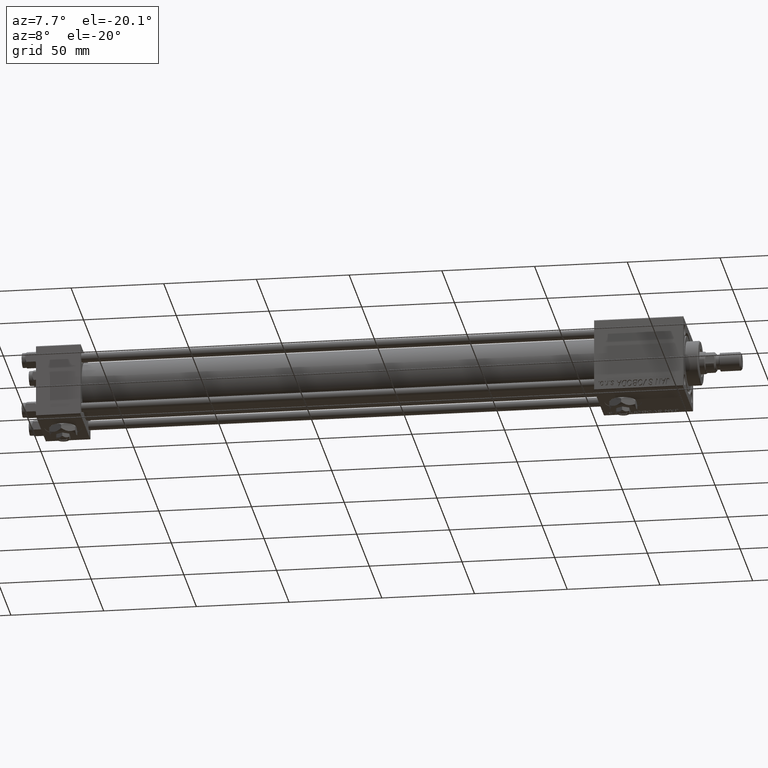
[diagram: clean part render]
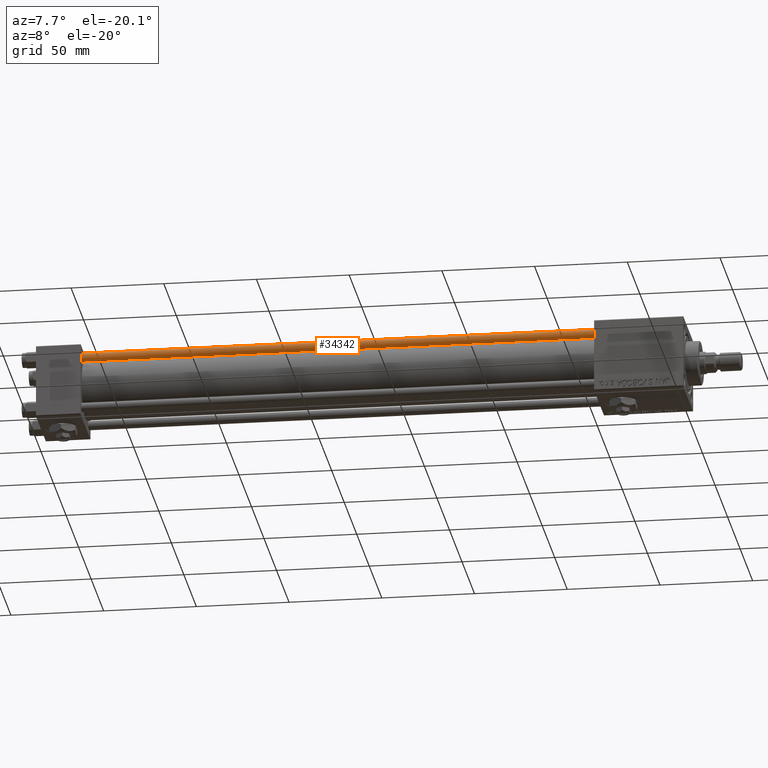
[diagram: same view with one face highlighted and labeled with its STEP entity id]
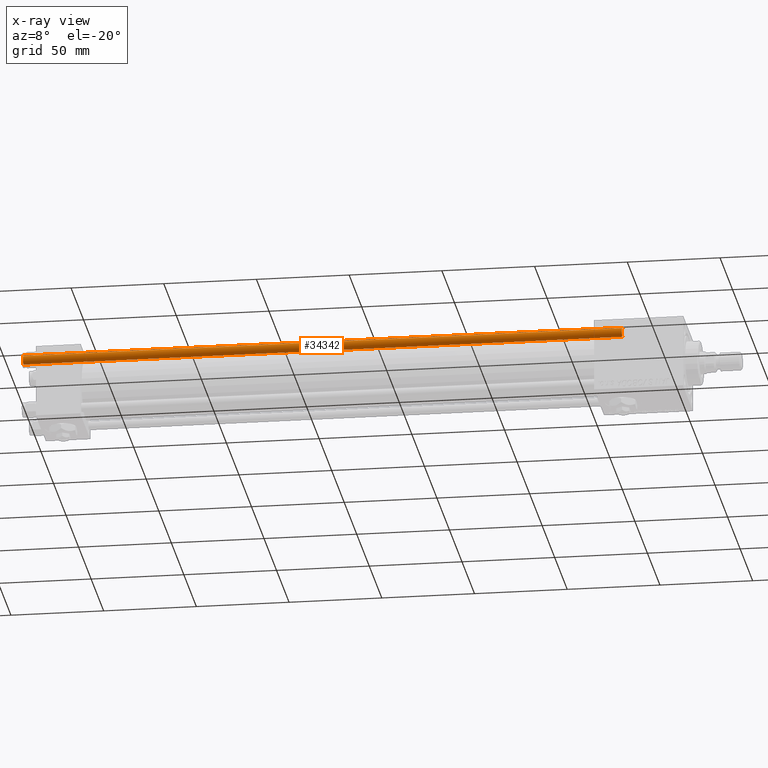
[diagram: x-ray of the same camera — body ghosted, the highlighted face saturated]
A machine part, auxiliary view. The second image highlights one B-rep face of the part: STEP entity #34342.
The next image is the same camera in x-ray: the body ghosted, the highlighted face saturated — about 0% of this face is hidden behind the body in this view.
In plain terms, the highlighted cylindrical surface (edge-blend (fillet) strip) has radius 2.5 mm, axis along (1, 0, -0).
Its self-contained STEP definition (entity closure, byte-faithful):
#499 = CARTESIAN_POINT ( 'NONE',  ( -2.500000000000000000, 0.000000000000000000, 323.5000000000000568 ) ) ;
#1135 = ORIENTED_EDGE ( 'NONE', *, *, #27463, .T. ) ;
#1357 = DIRECTION ( 'NONE',  ( 1.000000000000000000, 0.000000000000000000, 0.000000000000000000 ) ) ;
#2601 = AXIS2_PLACEMENT_3D ( 'NONE', #27250, #38956, #6001 ) ;
#3760 = FACE_OUTER_BOUND ( 'NONE', #43007, .T. ) ;
#6001 = DIRECTION ( 'NONE',  ( 1.000000000000000000, 0.000000000000000000, 0.000000000000000000 ) ) ;
#6248 = DIRECTION ( 'NONE',  ( -1.000000000000000000, 0.000000000000000000, 0.000000000000000000 ) ) ;
#8138 = ORIENTED_EDGE ( 'NONE', *, *, #23623, .T. ) ;
#10996 = LINE ( 'NONE', #19477, #38015 ) ;
#11082 = VERTEX_POINT ( 'NONE', #34939 ) ;
#11533 = DIRECTION ( 'NONE',  ( -0.000000000000000000, -0.000000000000000000, -1.000000000000000000 ) ) ;
#13190 = CIRCLE ( 'NONE', #48881, 2.500000000000000000 ) ;
#13857 = DIRECTION ( 'NONE',  ( 0.000000000000000000, 0.000000000000000000, -1.000000000000000000 ) ) ;
#17365 = EDGE_CURVE ( 'NONE', #40704, #11082, #13190, .T. ) ;
#19477 = CARTESIAN_POINT ( 'NONE',  ( 2.500000000000000000, 3.061616997868383141E-16, 324.0000000000000000 ) ) ;
#23623 = EDGE_CURVE ( 'NONE', #11082, #36876, #10996, .T. ) ;
#25529 = CIRCLE ( 'NONE', #2601, 2.500000000000000000 ) ;
#27250 = CARTESIAN_POINT ( 'NONE',  ( 0.000000000000000000, 0.000000000000000000, 0.4999999999998894218 ) ) ;
#27463 = EDGE_CURVE ( 'NONE', #36876, #28913, #25529, .T. ) ;
#27941 = ORIENTED_EDGE ( 'NONE', *, *, #46781, .F. ) ;
#28913 = VERTEX_POINT ( 'NONE', #34591 ) ;
#30761 = AXIS2_PLACEMENT_3D ( 'NONE', #43929, #48194, #6248 ) ;
#31692 = CYLINDRICAL_SURFACE ( 'NONE', #30761, 2.500000000000000000 ) ;
#32977 = ORIENTED_EDGE ( 'NONE', *, *, #17365, .T. ) ;
#34342 = ADVANCED_FACE ( 'NONE', ( #3760 ), #31692, .T. ) ;
#34591 = CARTESIAN_POINT ( 'NONE',  ( -2.500000000000000000, 0.000000000000000000, 0.4999999999998894218 ) ) ;
#34939 = CARTESIAN_POINT ( 'NONE',  ( 2.500000000000000000, 3.061616997868383141E-16, 323.5000000000000568 ) ) ;
#36876 = VERTEX_POINT ( 'NONE', #43227 ) ;
#38015 = VECTOR ( 'NONE', #11533, 1000.000000000000000 ) ;
#38956 = DIRECTION ( 'NONE',  ( -0.000000000000000000, -0.000000000000000000, 1.000000000000000000 ) ) ;
#40344 = DIRECTION ( 'NONE',  ( -0.000000000000000000, -0.000000000000000000, -1.000000000000000000 ) ) ;
#40704 = VERTEX_POINT ( 'NONE', #499 ) ;
#41388 = LINE ( 'NONE', #52595, #48968 ) ;
#43007 = EDGE_LOOP ( 'NONE', ( #32977, #8138, #1135, #27941 ) ) ;
#43227 = CARTESIAN_POINT ( 'NONE',  ( 2.500000000000000000, 3.061616997868383141E-16, 0.4999999999998894218 ) ) ;
#43929 = CARTESIAN_POINT ( 'NONE',  ( 0.000000000000000000, 0.000000000000000000, 324.0000000000000000 ) ) ;
#46781 = EDGE_CURVE ( 'NONE', #40704, #28913, #41388, .T. ) ;
#48194 = DIRECTION ( 'NONE',  ( -0.000000000000000000, -0.000000000000000000, -1.000000000000000000 ) ) ;
#48881 = AXIS2_PLACEMENT_3D ( 'NONE', #50561, #13857, #1357 ) ;
#48968 = VECTOR ( 'NONE', #40344, 1000.000000000000000 ) ;
#50561 = CARTESIAN_POINT ( 'NONE',  ( 0.000000000000000000, 0.000000000000000000, 323.5000000000000568 ) ) ;
#52595 = CARTESIAN_POINT ( 'NONE',  ( -2.500000000000000000, 0.000000000000000000, 324.0000000000000000 ) ) ;